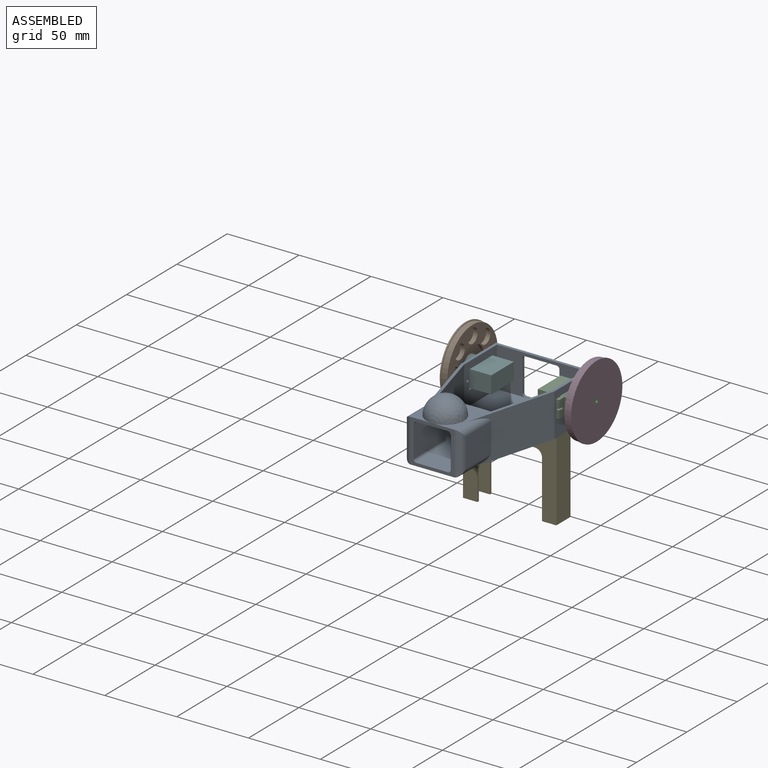
[diagram: assembled view]
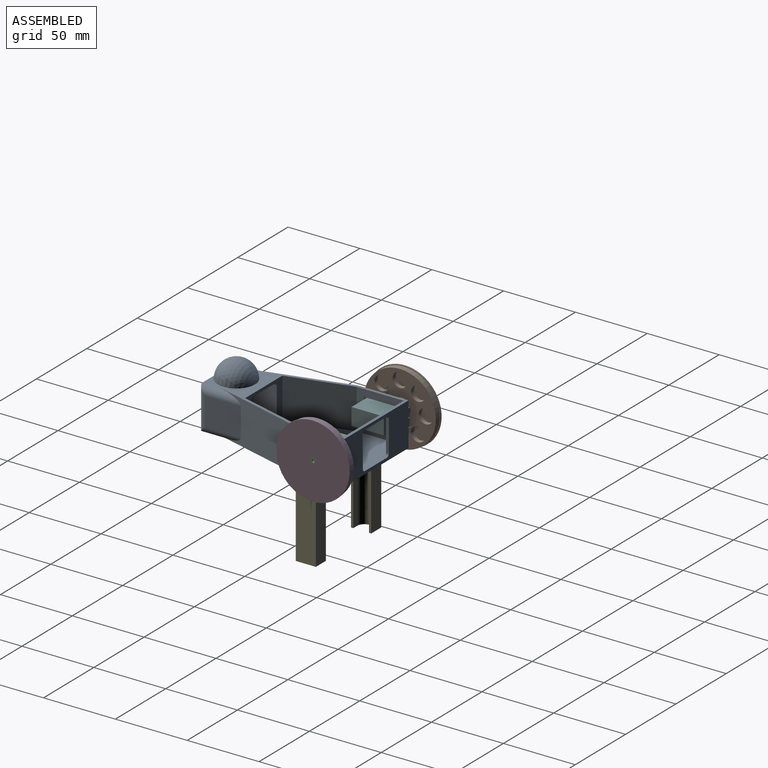
[diagram: assembled view, second angle]
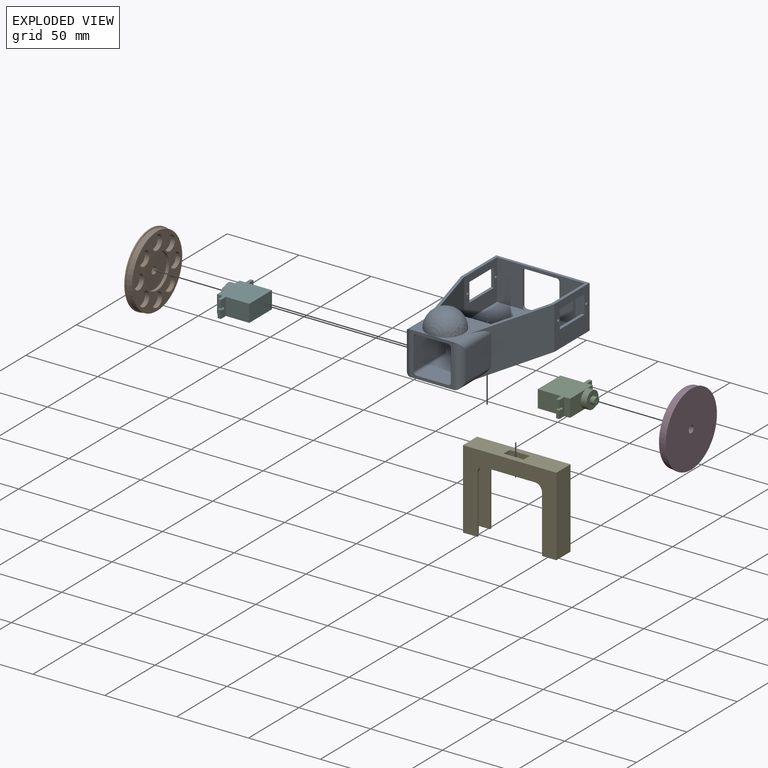
[diagram: exploded view]
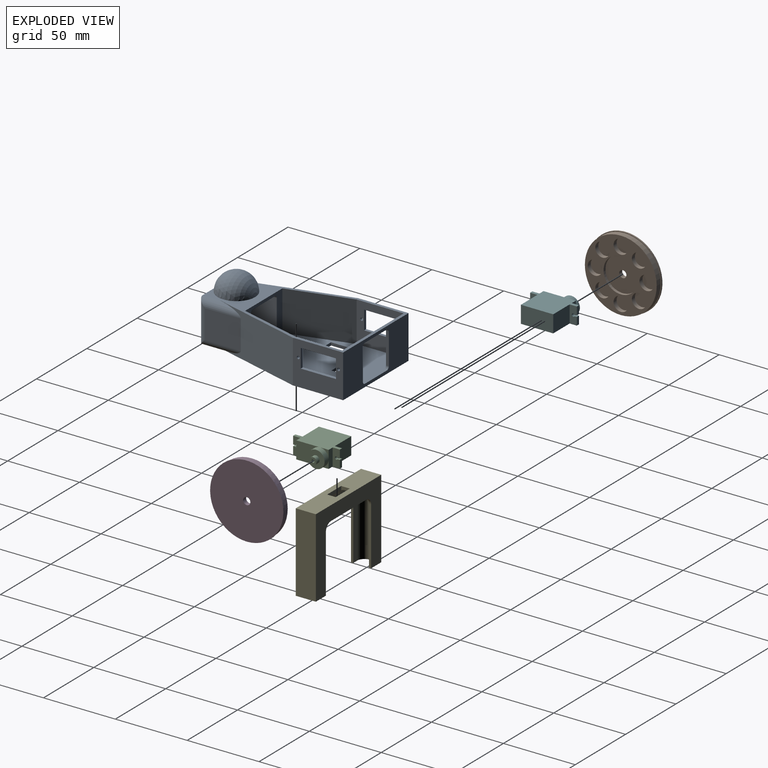
[diagram: exploded view, second angle]
ASSEMBLY  parts=6 mates=5
PART A: 66 faces, bbox 65x110x43 mm
  f0: plane 110x65mm, normal (0,0,-1), area 5399.5mm2, adj f2,f3,f6,f8,f9,f22,f23,f24
  f1: plane 76x61mm, normal (0,0,1), area 3887.9mm2, adj f4,f5,f10,f11,f12,f13,f22,f23
  f2: plane 35x30mm, normal (1,0,0), area 725.2mm2, adj f0,f6,f7,f8,f18,f19,f20,f21
  f3: plane 35x30mm, normal (-1,0,0), area 725.2mm2, adj f0,f6,f7,f9,f14,f15,f16,f17
  f4: plane 32.73x28mm, normal (-1,0,0), area 591.6mm2, adj f1,f7,f11,f12,f18,f19,f20,f21
  f5: plane 32.73x28mm, normal (1,0,0), area 591.6mm2, adj f1,f7,f12,f13,f14,f15,f16,f17
  f6: plane 65x30mm, normal (0,1,0), area 1287.8mm2, adj f0,f2,f3,f7,f26,f27,f28,f29
  f7: plane 110x65mm, normal (0,0,1), area 980.7mm2, adj f2,f3,f4,f5,f6,f8,f9,f10
  f8: plane 63x30mm, normal (0.96,-0.27,0), area 1441.2mm2, adj f0,f2,f7,f46,f50,f52
  f9: plane 63x30mm, normal (-0.96,-0.27,0), area 1441.2mm2, adj f0,f3,f7,f47,f53,f55
  f10: plane 36.96x28mm, normal (0,1,0), area 372.7mm2, adj f1,f7,f11,f13,f34,f35,f36,f37
  f11: plane 43.27x28mm, normal (-0.96,0.27,0), area 1257.5mm2, adj f1,f4,f7,f10
  f12: plane 61x28mm, normal (0,-1,0), area 1045.8mm2, adj f1,f4,f5,f7,f26,f27,f28,f29
  f13: plane 43.27x28mm, normal (0.96,0.27,0), area 1257.5mm2, adj f1,f5,f7,f10
  f14: plane 13x2mm, normal (0,-1,0), area 26mm2, adj f3,f5,f15,f17
  f15: plane 24.5x2mm, normal (0,0,1), area 49mm2, adj f3,f5,f14,f16
  f16: plane 13x2mm, normal (0,1,0), area 26mm2, adj f3,f5,f15,f17
  f17: plane 24.5x2mm, normal (0,0,-1), area 49mm2, adj f3,f5,f14,f16
  f18: plane 24.5x2mm, normal (0,0,-1), area 49mm2, adj f2,f4,f19,f21
  f19: plane 13x2mm, normal (0,1,0), area 26mm2, adj f2,f4,f18,f20
  f20: plane 24.5x2mm, normal (0,0,1), area 49mm2, adj f2,f4,f19,f21
  f21: plane 13x2mm, normal (0,-1,0), area 26mm2, adj f2,f4,f18,f20
  f22: plane 14x2mm, normal (0,1,0), area 28mm2, adj f0,f1,f23,f25
  f23: plane 6x2mm, normal (-1,0,0), area 12mm2, adj f0,f1,f22,f24
  f24: plane 14x2mm, normal (0,-1,0), area 28mm2, adj f0,f1,f23,f25
  f25: plane 6x2mm, normal (1,0,0), area 12mm2, adj f0,f1,f22,f24
  f26: cylinder r=2mm len=2mm, axis (0,-1,0), area 6.3mm2, adj f6,f12,f32,f33
  f27: cylinder r=2mm len=2mm, axis (0,1,0), area 6.3mm2, adj f6,f12,f31,f32
  f28: cylinder r=2mm len=2mm, axis (0,1,0), area 6.3mm2, adj f6,f12,f30,f33
  f29: cylinder r=2mm len=2mm, axis (0,-1,0), area 6.3mm2, adj f6,f12,f30,f31
  f30: plane 21.8x2mm, normal (0,0,1), area 43.6mm2, adj f6,f12,f28,f29
  f31: plane 21.8x2mm, normal (-1,0,0), area 43.6mm2, adj f6,f12,f27,f29
  f32: plane 21.8x2mm, normal (0,0,-1), area 43.6mm2, adj f6,f12,f26,f27
  f33: plane 21.8x2mm, normal (1,0,0), area 43.6mm2, adj f6,f12,f26,f28
  f34: plane 32x21.8mm, normal (1,0,0), area 697.6mm2, adj f10,f38,f41,f48
  f35: plane 32x21.8mm, normal (0,0,-1), area 697.6mm2, adj f10,f38,f39,f48
  f36: plane 32x21.8mm, normal (-1,0,0), area 697.6mm2, adj f10,f39,f40,f48
  f37: plane 32x21.8mm, normal (0,0,1), area 697.6mm2, adj f10,f40,f41,f48
  f38: cylinder r=2mm len=32mm, axis (0,-1,0), area 100.5mm2, adj f10,f34,f35,f48
  f39: cylinder r=2mm len=32mm, axis (0,1,0), area 100.5mm2, adj f10,f35,f36,f48
  f40: cylinder r=2mm len=32mm, axis (0,-1,0), area 100.5mm2, adj f10,f36,f37,f48
  f41: cylinder r=2mm len=32mm, axis (0,1,0), area 100.5mm2, adj f10,f34,f37,f48
  f42: cylinder r=1mm len=2mm, axis (-1,0,0), area 12.6mm2, adj f3,f5
  f43: cylinder r=1mm len=2mm, axis (-1,0,0), area 12.6mm2, adj f3,f5
  f44: cylinder r=1mm len=2mm, axis (-1,0,0), area 12.6mm2, adj f2,f4
  f45: cylinder r=1mm len=2mm, axis (-1,0,0), area 12.6mm2, adj f2,f4
  f46: plane 25x20mm, normal (1,0,0), area 500mm2, adj f8,f50,f51,f52
  f47: plane 25x20mm, normal (-1,0,0), area 500mm2, adj f9,f53,f54,f55
  f48: plane 30x30mm, normal (0,-1,0), area 237.8mm2, adj f0,f7,f34,f35,f36,f37,f38,f39
  f49: sphere r=13mm, area 1061.9mm2, adj f7
  f50: cylinder r=5mm len=30mm, axis (0,1,0), area 170mm2, adj f7,f8,f46,f51
  f51: cylinder r=5mm len=30mm, axis (0,0,-1), area 207.1mm2, adj f46,f48,f50,f52
  f52: cylinder r=5mm len=30mm, axis (0,-1,0), area 170mm2, adj f0,f8,f46,f51
  f53: cylinder r=5mm len=30mm, axis (0,1,0), area 170mm2, adj f0,f9,f47,f54
  f54: cylinder r=5mm len=30mm, axis (0,0,1), area 207.1mm2, adj f47,f48,f53,f55
  f55: cylinder r=5mm len=30mm, axis (0,-1,0), area 170mm2, adj f7,f9,f47,f54
  f56: plane 12x2mm, normal (1,0,0), area 24mm2, adj f0,f1,f57,f59
  f57: plane 6x2mm, normal (0,1,0), area 12mm2, adj f0,f1,f56,f58
  f58: plane 12x2mm, normal (-1,0,0), area 24mm2, adj f0,f1,f57,f59
  f59: plane 6x2mm, normal (0,-1,0), area 12mm2, adj f0,f1,f56,f58
  f60: plane 12x2mm, normal (-1,0,0), area 24mm2, adj f0,f1,f61,f63
  f61: plane 6x2mm, normal (0,-1,0), area 12mm2, adj f0,f1,f60,f62
  f62: plane 12x2mm, normal (1,0,0), area 24mm2, adj f0,f1,f61,f63
  f63: plane 6x2mm, normal (0,1,0), area 12mm2, adj f0,f1,f60,f62
  f64: sphere r=12mm, area 904.8mm2, adj f65
  f65: plane 24x24mm, normal (0,0,1), area 452.4mm2, adj f64
PART B: 24 faces, bbox 51x51x5 mm
  f0: cylinder r=25mm len=50mm, axis (0,0,-1), area 628.3mm2, adj f1,f4
  f1: plane 50x50mm, normal (0,0,1), area 882.8mm2, adj f0,f5,f8,f10,f12,f14,f16,f18
  f2: cylinder r=25.5mm len=51mm, axis (0,0,1), area 160.2mm2, adj f3,f4
  f3: plane 51x51mm, normal (0,0,-1), area 2023.2mm2, adj f2,f7
  f4: plane 51x51mm, normal (0,0,1), area 79.3mm2, adj f0,f2
  f5: cylinder r=12mm len=24mm, axis (0,0,1), area 150.8mm2, adj f1,f6
  f6: plane 24x24mm, normal (0,0,1), area 432.8mm2, adj f5,f7
  f7: cylinder r=2.5mm len=5mm, axis (0,0,1), area 47.1mm2, adj f3,f6
  f8: cylinder r=5mm len=10mm, axis (0,0,1), area 94.2mm2, adj f1,f9
  f9: plane 10x10mm, normal (0,0,1), area 78.5mm2, adj f8
  f10: cylinder r=5mm len=10mm, axis (0,0,1), area 94.2mm2, adj f1,f11
  f11: plane 10x10mm, normal (0,0,1), area 78.5mm2, adj f10
  f12: cylinder r=5mm len=10mm, axis (0,0,1), area 94.2mm2, adj f1,f13
  f13: plane 10x10mm, normal (0,0,1), area 78.5mm2, adj f12
  f14: cylinder r=5mm len=10mm, axis (0,0,1), area 94.2mm2, adj f1,f15
  f15: plane 10x10mm, normal (0,0,1), area 78.5mm2, adj f14
  f16: cylinder r=5mm len=10mm, axis (0,0,1), area 94.2mm2, adj f1,f17
  f17: plane 10x10mm, normal (0,0,1), area 78.5mm2, adj f16
  f18: cylinder r=5mm len=10mm, axis (0,0,1), area 94.2mm2, adj f1,f19
  f19: plane 10x10mm, normal (0,0,1), area 78.5mm2, adj f18
  f20: cylinder r=5mm len=10mm, axis (0,0,1), area 94.2mm2, adj f1,f21
  f21: plane 10x10mm, normal (0,0,1), area 78.5mm2, adj f20
  f22: cylinder r=5mm len=10mm, axis (0,0,1), area 94.2mm2, adj f1,f23
  f23: plane 10x10mm, normal (0,0,1), area 78.5mm2, adj f22
PART C: 30 faces, bbox 32.5x12x29.5 mm
  f0: plane 5.5x2.2mm, normal (-1,0,0), area 12.1mm2, adj f10,f15,f16,f28
  f1: plane 12x5mm, normal (0,0,1), area 55.3mm2, adj f3,f4,f7,f10,f12,f18,f26,f27
  f2: plane 12x5mm, normal (0,0,-1), area 55.3mm2, adj f3,f4,f9,f10,f12,f18,f26,f27
  f3: plane 5.5x2.2mm, normal (1,0,0), area 12.1mm2, adj f1,f2,f12,f27
  f4: cylinder r=1mm len=2.2mm, axis (0,0,1), area 11.5mm2, adj f1,f2,f26,f27
  f5: plane 6x6mm, normal (0,0,1), area 7.7mm2, adj f10,f11,f19
  f6: plane 6x6mm, normal (0,0,1), area 7.7mm2, adj f11,f12,f19
  f7: plane 12x4mm, normal (1,0,0), area 48mm2, adj f1,f10,f12,f13
  f8: plane 16.3x12mm, normal (-1,0,0), area 195.6mm2, adj f10,f12,f14,f16
  f9: plane 16.3x12mm, normal (1,0,0), area 195.6mm2, adj f2,f10,f12,f14
  f10: plane 32.5x22.5mm, normal (0,1,0), area 528.2mm2, adj f0,f1,f2,f5,f7,f8,f9,f11
  f11: plane 12x4mm, normal (-1,0,0), area 48mm2, adj f5,f6,f10,f12,f15
  f12: plane 32.5x22.5mm, normal (0,-1,0), area 528.2mm2, adj f1,f2,f3,f6,f7,f8,f9,f11
  f13: plane 16.5x12mm, normal (0,0,1), area 141.5mm2, adj f7,f10,f12,f19
  f14: plane 22.5x12mm, normal (0,0,-1), area 270mm2, adj f8,f9,f10,f12
  f15: plane 12x5mm, normal (0,0,1), area 55.3mm2, adj f0,f10,f11,f12,f17,f25,f28,f29
  f16: plane 12x5mm, normal (0,0,-1), area 55.3mm2, adj f0,f8,f10,f12,f17,f25,f28,f29
  f17: plane 5.5x2.2mm, normal (-1,0,0), area 12.1mm2, adj f12,f15,f16,f29
  f18: plane 5.5x2.2mm, normal (1,0,0), area 12.1mm2, adj f1,f2,f10,f26
  f19: cylinder r=6mm len=12mm, axis (0,0,-1), area 150.8mm2, adj f5,f6,f13,f20
  f20: plane 12x12mm, normal (0,0,1), area 93.5mm2, adj f19,f21
  f21: cylinder r=2.5mm len=5mm, axis (0,0,-1), area 47.1mm2, adj f20,f22
  f22: plane 5x5mm, normal (0,0,1), area 16.5mm2, adj f21,f23
  f23: cylinder r=1mm len=3mm, axis (0,0,1), area 18.8mm2, adj f22,f24
  f24: plane 2x2mm, normal (0,0,1), area 3.1mm2, adj f23
  f25: cylinder r=1mm len=2.2mm, axis (0,0,1), area 11.5mm2, adj f15,f16,f28,f29
  f26: plane 2.2x1.63mm, normal (0,-1,0), area 3.6mm2, adj f1,f2,f4,f18
  f27: plane 2.2x1.63mm, normal (0,1,0), area 3.6mm2, adj f1,f2,f3,f4
  f28: plane 2.2x1.63mm, normal (0,-1,0), area 3.6mm2, adj f0,f15,f16,f25
  f29: plane 2.2x1.63mm, normal (0,1,0), area 3.6mm2, adj f15,f16,f17,f25
PART D: same geometry as B
PART E: 33 faces, bbox 65x14x55 mm
  f0: plane 65x14mm, normal (0,0,1), area 826mm2, adj f2,f3,f7,f8,f29,f30,f31,f32
  f1: plane 14x10mm, normal (0,0,-1), area 46.4mm2, adj f2,f3,f4,f5,f7,f9,f18,f22
  f2: plane 65x55mm, normal (0,1,0), area 1560.7mm2, adj f0,f1,f6,f7,f8,f24,f25,f26
  f3: plane 65x55mm, normal (0,-1,0), area 1560.7mm2, adj f0,f1,f6,f7,f8,f19,f20,f21
  f4: plane 63x53mm, normal (0,-1,0), area 1314mm2, adj f1,f6,f9,f10,f11,f12,f13,f24
  f5: plane 53x48mm, normal (0,1,0), area 529.7mm2, adj f1,f6,f14,f16,f18,f19,f20,f21
  f6: plane 14x10mm, normal (0,0,-1), area 46.4mm2, adj f2,f3,f4,f5,f8,f10,f14,f23
  f7: plane 55x14mm, normal (-1,0,0), area 770mm2, adj f0,f1,f2,f3
  f8: plane 55x14mm, normal (1,0,0), area 770mm2, adj f0,f2,f3,f6
  f9: plane 48x6mm, normal (1,0,0), area 288mm2, adj f1,f4,f13,f18
  f10: plane 48x6mm, normal (-1,0,0), area 288mm2, adj f4,f6,f12,f14
  f11: plane 53x6mm, normal (0,0,-1), area 269mm2, adj f4,f12,f13,f16,f29,f31,f32
  f12: cylinder r=5mm len=6mm, axis (0,-1,0), area 47.1mm2, adj f4,f10,f11,f15
  f13: cylinder r=5mm len=6mm, axis (0,1,0), area 47.1mm2, adj f4,f9,f11,f17
  f14: cylinder r=5mm len=48mm, axis (0,0,-1), area 377mm2, adj f5,f6,f10,f15
  f15: sphere r=5mm, area 39.3mm2, adj f12,f14,f16
  f16: cylinder r=5mm len=53mm, axis (-1,0,0), area 379.6mm2, adj f5,f11,f15,f17,f30,f31,f32
  f17: sphere r=5mm, area 39.3mm2, adj f13,f16,f18
  f18: cylinder r=5mm len=48mm, axis (0,0,1), area 377mm2, adj f1,f5,f9,f17
  f19: cylinder r=5mm len=5mm, axis (0,1,0), area 11.8mm2, adj f3,f5,f21,f22
  f20: cylinder r=5mm len=5mm, axis (0,-1,0), area 11.8mm2, adj f3,f5,f21,f23
  f21: plane 35x1.5mm, normal (0,0,-1), area 52.5mm2, adj f3,f5,f19,f20
  f22: plane 40x1.5mm, normal (1,0,0), area 60mm2, adj f1,f3,f5,f19
  f23: plane 40x1.5mm, normal (-1,0,0), area 60mm2, adj f3,f5,f6,f20
  f24: plane 40x1.5mm, normal (-1,0,0), area 60mm2, adj f2,f4,f6,f28
  f25: plane 40x1.5mm, normal (1,0,0), area 60mm2, adj f1,f2,f4,f27
  f26: plane 35x1.5mm, normal (0,0,-1), area 52.5mm2, adj f2,f4,f27,f28
  f27: cylinder r=5mm len=5mm, axis (0,1,0), area 11.8mm2, adj f2,f4,f25,f26
  f28: cylinder r=5mm len=5mm, axis (0,-1,0), area 11.8mm2, adj f2,f4,f24,f26
  f29: plane 14x2mm, normal (0,-1,0), area 28mm2, adj f0,f11,f31,f32
  f30: plane 14x2.67mm, normal (0,1,0), area 37.4mm2, adj f0,f16,f31,f32
  f31: plane 6x2.67mm, normal (-1,0,0), area 12.5mm2, adj f0,f11,f16,f29,f30
  f32: plane 6x2.67mm, normal (1,0,0), area 12.5mm2, adj f0,f11,f16,f29,f30
PART F: same geometry as C
PLACE A t=(59.61,25.21,-18.55)mm
PLACE B rot(axis=(-0.71,0,-0.71),180deg) t=(-17.59,13.46,-0.05)mm
PLACE C rot(axis=(-0.58,0.58,-0.58),120deg) t=(43.31,8.21,-0.05)mm
PLACE D rot(axis=(0,-1,0),90deg) t=(71.81,13.46,-0.05)mm
PLACE E t=(59.61,22.21,-18.55)mm
PLACE F rot(axis=(0.58,-0.58,-0.58),120deg) t=(10.91,8.21,-0.05)mm
MATE fastened E.f0 <-> A.f0  axis (0,0,1) through (27.11,-0.79,-18.55)mm
MATE fastened A.f42 <-> C.f25  axis (1,0,0) through (59.61,21.96,-0.05)mm
MATE fastened F.f25 <-> A.f42  axis (1,0,0) through (-5.39,21.96,-0.05)mm
MATE fastened D.f5 <-> C.f21  axis (-1,0,0) through (69.81,13.46,-0.05)mm
MATE fastened B.f5 <-> F.f21  axis (1,0,0) through (-15.59,13.46,-0.05)mm
